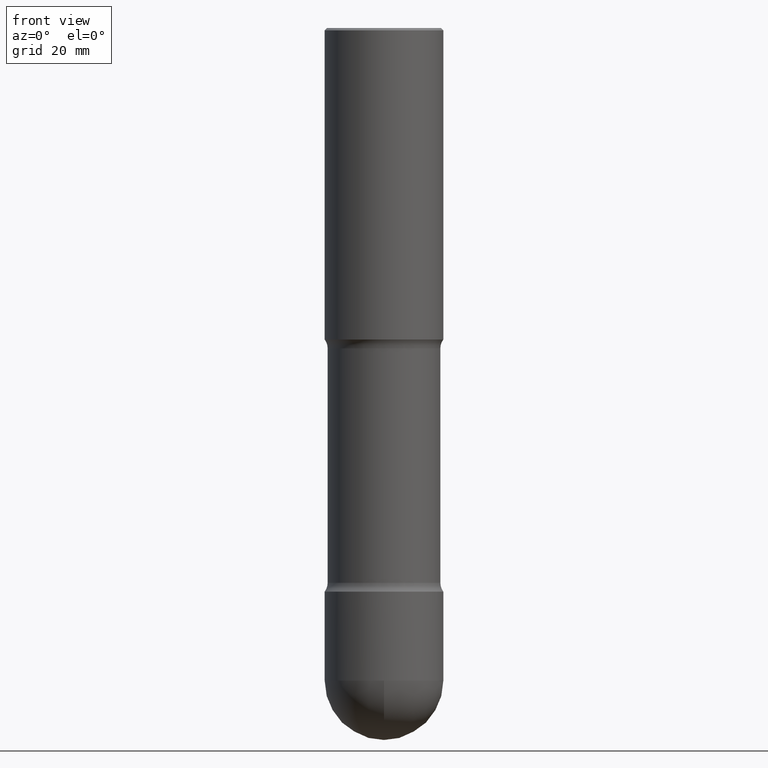
[diagram: clean part render]
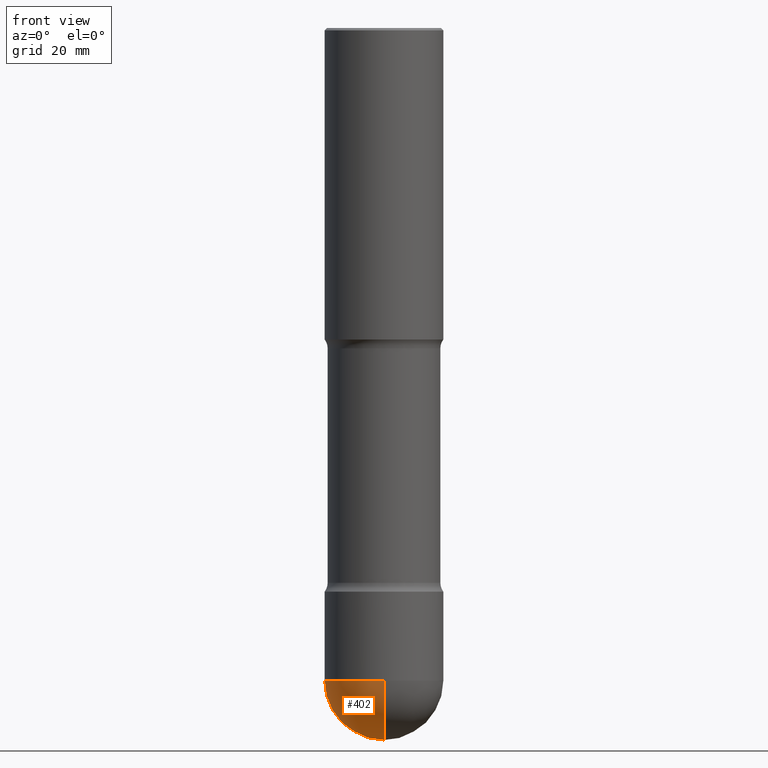
[diagram: same view with one face highlighted and labeled with its STEP entity id]
A machine part, front view. The second image highlights one B-rep face of the part: STEP entity #402.
In plain terms, the highlighted spherical surface has radius 12.7 mm.
Its self-contained STEP definition (entity closure, byte-faithful):
#3 = FACE_OUTER_BOUND ( 'NONE', #287, .T. ) ;
#7 = CARTESIAN_POINT ( 'NONE',  ( 1.340732011955928297E-28, -1.926437970359467045E-14, -5.500000000000000888 ) ) ;
#26 = DIRECTION ( 'NONE',  ( 1.000000000000000000, -6.982962677686268288E-15, 0.000000000000000000 ) ) ;
#29 = ORIENTED_EDGE ( 'NONE', *, *, #391, .F. ) ;
#47 = CARTESIAN_POINT ( 'NONE',  ( 1.340732011955928297E-28, -1.926437970359467045E-14, -5.500000000000000888 ) ) ;
#68 = EDGE_CURVE ( 'NONE', #365, #151, #88, .T. ) ;
#88 = CIRCLE ( 'NONE', #443, 0.4999999999999990563 ) ;
#89 = CIRCLE ( 'NONE', #415, 0.4999999999999993339 ) ;
#97 = DIRECTION ( 'NONE',  ( 6.982962677686265922E-15, 1.000000000000000000, -4.370956789862827460E-15 ) ) ;
#102 = VERTEX_POINT ( 'NONE', #336 ) ;
#113 = ORIENTED_EDGE ( 'NONE', *, *, #280, .F. ) ;
#120 = CARTESIAN_POINT ( 'NONE',  ( -3.552713678800360118E-15, -0.5000000000000184297, -5.499999999999999112 ) ) ;
#131 = CIRCLE ( 'NONE', #395, 0.4999999999999990563 ) ;
#143 = DIRECTION ( 'NONE',  ( 6.982962677686265922E-15, 1.000000000000000000, 0.000000000000000000 ) ) ;
#151 = VERTEX_POINT ( 'NONE', #120 ) ;
#158 = VERTEX_POINT ( 'NONE', #387 ) ;
#183 = CARTESIAN_POINT ( 'NONE',  ( 1.345007843401825128E-28, -1.920314736363730603E-14, -5.500000000000000888 ) ) ;
#188 = CARTESIAN_POINT ( 'NONE',  ( 1.340732011955928297E-28, -1.926437970359467045E-14, -5.500000000000000888 ) ) ;
#214 = AXIS2_PLACEMENT_3D ( 'NONE', #188, #379, #97 ) ;
#222 = CARTESIAN_POINT ( 'NONE',  ( -0.4999999999999990563, -1.434112818277063167E-14, -5.500000000000000888 ) ) ;
#244 = DIRECTION ( 'NONE',  ( -7.105427357601000281E-15, -1.000000000000000000, 0.000000000000000000 ) ) ;
#251 = CARTESIAN_POINT ( 'NONE',  ( 1.345007843401825128E-28, -1.920314736363730603E-14, -5.500000000000000888 ) ) ;
#262 = AXIS2_PLACEMENT_3D ( 'NONE', #7, #412, #143 ) ;
#280 = EDGE_CURVE ( 'NONE', #102, #365, #131, .T. ) ;
#287 = EDGE_LOOP ( 'NONE', ( #29, #470, #288, #113 ) ) ;
#288 = ORIENTED_EDGE ( 'NONE', *, *, #68, .F. ) ;
#305 = EDGE_CURVE ( 'NONE', #158, #151, #89, .T. ) ;
#333 = DIRECTION ( 'NONE',  ( -1.000000000000000000, 7.105427357601001070E-15, -4.926315508542082329E-29 ) ) ;
#336 = CARTESIAN_POINT ( 'NONE',  ( 3.491481338843261545E-15, 0.4999999999999799050, -5.500000000000002665 ) ) ;
#365 = VERTEX_POINT ( 'NONE', #222 ) ;
#379 = DIRECTION ( 'NONE',  ( -1.000000000000000000, 6.982962677686265922E-15, -4.883557194083112901E-29 ) ) ;
#387 = CARTESIAN_POINT ( 'NONE',  ( 1.465143367988133543E-28, -2.097950420303755649E-14, -6.000000000000000888 ) ) ;
#391 = EDGE_CURVE ( 'NONE', #158, #102, #519, .T. ) ;
#392 = DIRECTION ( 'NONE',  ( -2.445468806185136597E-29, 3.491481338843145583E-15, 1.000000000000000000 ) ) ;
#395 = AXIS2_PLACEMENT_3D ( 'NONE', #183, #392, #429 ) ;
#402 = ADVANCED_FACE ( 'NONE', ( #3 ), #484, .T. ) ;
#412 = DIRECTION ( 'NONE',  ( 1.000000000000000000, -6.982962677686265922E-15, 4.883557194083112340E-29 ) ) ;
#415 = AXIS2_PLACEMENT_3D ( 'NONE', #47, #333, #244 ) ;
#429 = DIRECTION ( 'NONE',  ( 1.000000000000000000, -6.982962677686268288E-15, 0.000000000000000000 ) ) ;
#443 = AXIS2_PLACEMENT_3D ( 'NONE', #251, #509, #26 ) ;
#470 = ORIENTED_EDGE ( 'NONE', *, *, #305, .T. ) ;
#484 = SPHERICAL_SURFACE ( 'NONE', #214, 0.4999999999999993339 ) ;
#509 = DIRECTION ( 'NONE',  ( -2.445468806185136597E-29, 3.491481338843145583E-15, 1.000000000000000000 ) ) ;
#519 = CIRCLE ( 'NONE', #262, 0.4999999999999993339 ) ;